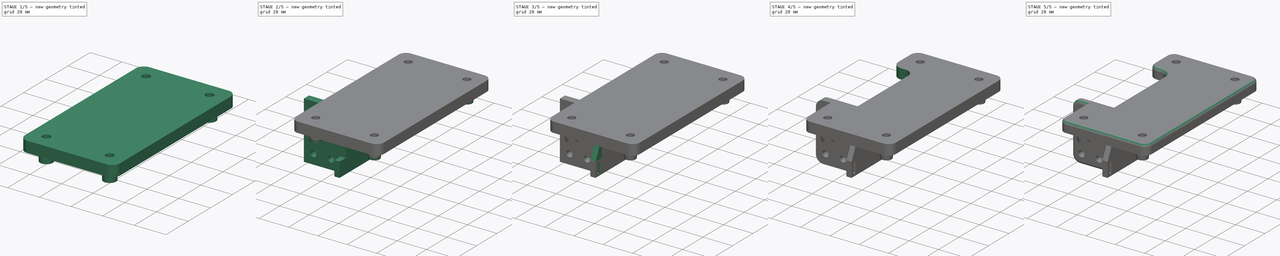
[diagram: build sequence overview — one tinted view per stage of 5, left to right]
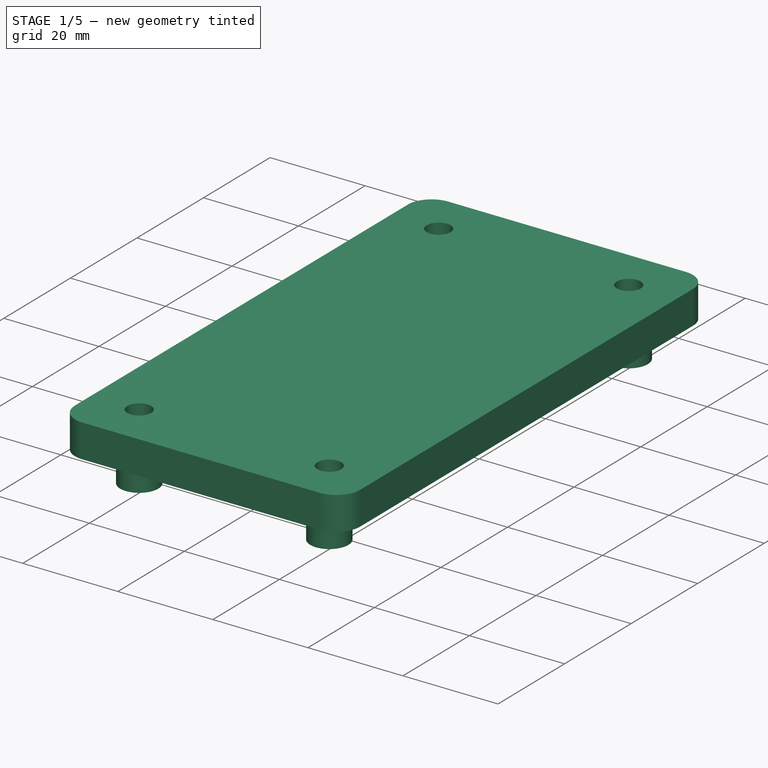
[diagram: stage 1 of 5 — iso view after this stage's code; geometry added in this stage tinted green]
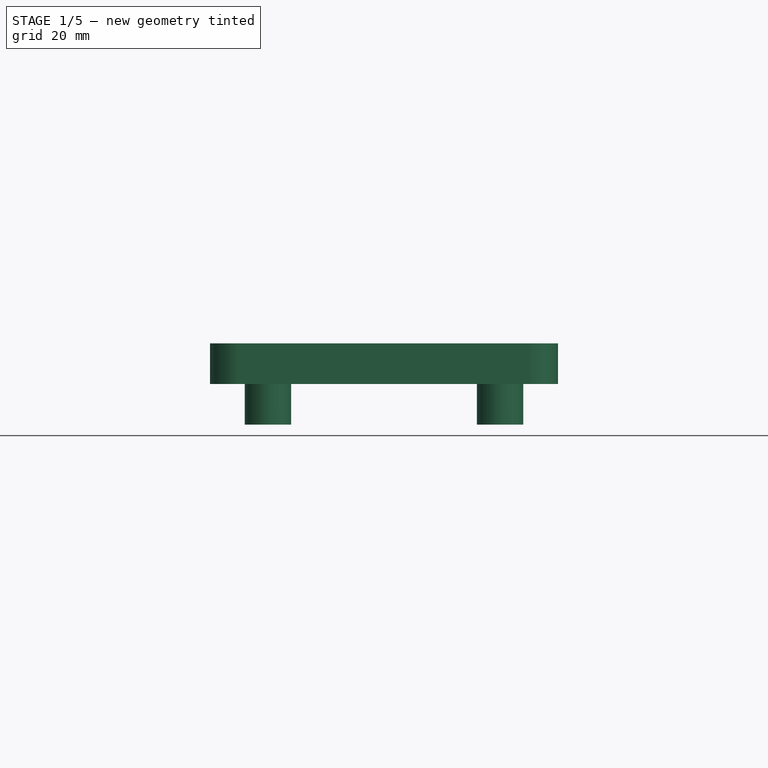
[diagram: stage 1 of 5 — front view after this stage's code; geometry added in this stage tinted green]
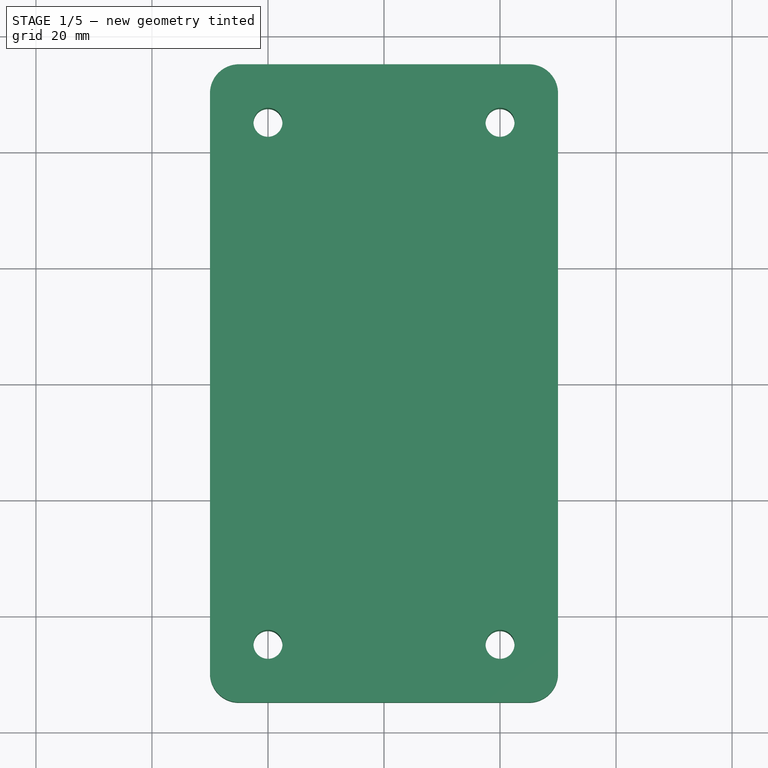
[diagram: stage 1 of 5 — top view after this stage's code; geometry added in this stage tinted green]
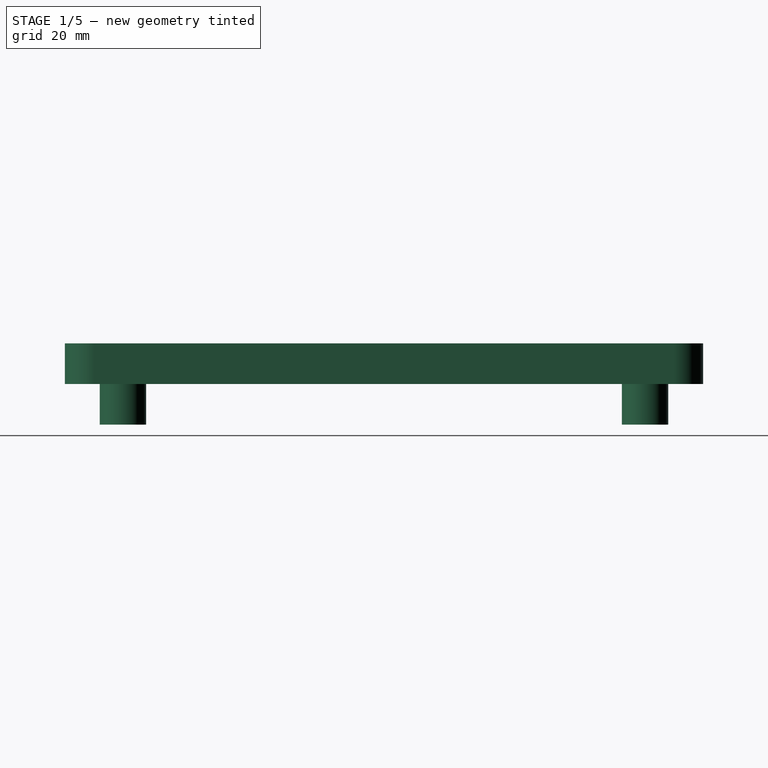
[diagram: stage 1 of 5 — right view after this stage's code; geometry added in this stage tinted green]
FCSTD DOCUMENT  (FreeCAD 0.20R29177 +426 (Git))
Label: x-carriage
License: All rights reserved
LicenseURL: http://en.wikipedia.org/wiki/All_rights_reserved
objects: Sketcher::SketchObject×8, PartDesign::Fillet×7, PartDesign::Pad×6, PartDesign::Chamfer×2, PartDesign::Pocket×2, PartDesign::Plane×1, PartDesign::Body×1
note: 44 computed .brp shape members not serialized (recipe doc carries the construction recipe); baked Part::Feature solids carry a one-line shape summary decoded from their .brp

FEATURE [Sketcher::SketchObject] Sketch
  FullyConstrained = true
  MapMode = 5
  Support = -> [XY_Plane]
  sketch-geometry (12):
    g0: LineSegment StartX=-30 StartY=55 StartZ=0 EndX=30 EndY=55 EndZ=0
    g1: LineSegment StartX=30 StartY=55 StartZ=0 EndX=30 EndY=-55 EndZ=0
    g2: LineSegment StartX=30 StartY=-55 StartZ=0 EndX=-30 EndY=-55 EndZ=0
    g3: LineSegment StartX=-30 StartY=-55 StartZ=0 EndX=-30 EndY=55 EndZ=0
    g4: LineSegment StartX=-20 StartY=45 StartZ=0 EndX=20 EndY=45 EndZ=0
    g5: LineSegment StartX=20 StartY=45 StartZ=0 EndX=20 EndY=-45 EndZ=0
    g6: LineSegment StartX=20 StartY=-45 StartZ=0 EndX=-20 EndY=-45 EndZ=0
    g7: LineSegment StartX=-20 StartY=-45 StartZ=0 EndX=-20 EndY=45 EndZ=0
    g8: Circle CenterX=-20 CenterY=45 CenterZ=0 NormalX=0 NormalY=0 NormalZ=1 AngleXU=0 Radius=2.5
    g9: Circle CenterX=20 CenterY=45 CenterZ=0 NormalX=0 NormalY=0 NormalZ=1 AngleXU=0 Radius=2.5
    g10: Circle CenterX=-20 CenterY=-45 CenterZ=0 NormalX=0 NormalY=0 NormalZ=1 AngleXU=0 Radius=2.5
    g11: Circle CenterX=20 CenterY=-45 CenterZ=0 NormalX=0 NormalY=0 NormalZ=1 AngleXU=0 Radius=2.5
  constraints (30):
    c: Coincident(g0,g1)
    c: Coincident(g1,g2)
    c: Coincident(g2,g3)
    c: Coincident(g3,g0)
    c: Horizontal(g0)
    c: Horizontal(g2)
    c: Vertical(g1)
    c: Vertical(g3)
    c: Symmetric(g0,g1,g-1)
    c: Distance(g0) = 60
    c: Distance(g1) = 110
    c: Coincident(g4,g5)
    c: Coincident(g5,g6)
    c: Coincident(g6,g7)
    c: Coincident(g7,g4)
    c: Horizontal(g4)
    c: Horizontal(g6)
    c: Vertical(g5)
    c: Vertical(g7)
    c: Symmetric(g4,g5,g-1)
    c: Distance(g4) = 40
    c: Distance(g7) = 90
    c: Coincident(g8,g4)
    c: Coincident(g9,g4)
    c: Coincident(g10,g6)
    c: Coincident(g11,g5)
    c: Equal(g10,g11)
    c: Equal(g11,g9)
    c: Equal(g9,g8)
    c: Diameter(g8) = 5
FEATURE [PartDesign::Pad] Pad
  Direction = (0,0,1)
  Length = 7
  Length2 = 10
  Profile = -> Sketch
  ReferenceAxis = -> Sketch [N_Axis]
  Type = 0
FEATURE [PartDesign::Fillet] Fillet
  Base = -> Pad [Edge5,Edge8,Edge2,Edge1]
  BaseFeature = -> Pad
  Radius = 5
  SupportTransform = false
  UseAllEdges = false
FEATURE [Sketcher::SketchObject] Sketch001
  FullyConstrained = true
  MapMode = 5
  Support = -> [XY_Plane]
  sketch-geometry (12):
    g0: LineSegment StartX=-20 StartY=45 StartZ=0 EndX=20 EndY=45 EndZ=0
    g1: LineSegment StartX=20 StartY=45 StartZ=0 EndX=20 EndY=-45 EndZ=0
    g2: LineSegment StartX=20 StartY=-45 StartZ=0 EndX=-20 EndY=-45 EndZ=0
    g3: LineSegment StartX=-20 StartY=-45 StartZ=0 EndX=-20 EndY=45 EndZ=0
    g4: Circle CenterX=20 CenterY=45 CenterZ=0 NormalX=0 NormalY=0 NormalZ=1 AngleXU=0 Radius=2.5
    g5: Circle CenterX=20 CenterY=45 CenterZ=0 NormalX=0 NormalY=0 NormalZ=1 AngleXU=0 Radius=4
    g6: Circle CenterX=-20 CenterY=45 CenterZ=0 NormalX=0 NormalY=0 NormalZ=1 AngleXU=0 Radius=4
    g7: Circle CenterX=-20 CenterY=45 CenterZ=0 NormalX=0 NormalY=0 NormalZ=1 AngleXU=0 Radius=2.5
    g8: Circle CenterX=20 CenterY=-45 CenterZ=0 NormalX=0 NormalY=0 NormalZ=1 AngleXU=0 Radius=4
    g9: Circle CenterX=20 CenterY=-45 CenterZ=0 NormalX=0 NormalY=0 NormalZ=1 AngleXU=0 Radius=2.5
    g10: Circle CenterX=-20 CenterY=-45 CenterZ=0 NormalX=0 NormalY=0 NormalZ=1 AngleXU=0 Radius=4
    g11: Circle CenterX=-20 CenterY=-45 CenterZ=0 NormalX=0 NormalY=0 NormalZ=1 AngleXU=0 Radius=2.5
  constraints (27):
    c: Coincident(g0,g1)
    c: Coincident(g1,g2)
    c: Coincident(g2,g3)
    c: Coincident(g3,g0)
    c: Horizontal(g0)
    c: Horizontal(g2)
    c: Vertical(g1)
    c: Vertical(g3)
    c: Symmetric(g0,g2,g-1)
    c: Distance(g2) = 40
    c: Distance(g3) = 90
    c: Coincident(g4,g0)
    c: Coincident(g5,g4)
    c: Coincident(g6,g0)
    c: Coincident(g7,g6)
    c: Coincident(g8,g1)
    c: Coincident(g9,g8)
    c: Coincident(g10,g2)
    c: Coincident(g11,g10)
    c: Equal(g4,g7)
    c: Equal(g7,g9)
    c: Equal(g9,g11)
    c: Equal(g8,g10)
    c: Equal(g10,g5)
    c: Equal(g5,g6)
    c: Diameter(g9) = 5
    c: Diameter(g8) = 8
FEATURE [PartDesign::Pad] Pad001
  BaseFeature = -> Fillet
  Direction = (0,0,1)
  Length = 7
  Length2 = 10
  Profile = -> Sketch001
  ReferenceAxis = -> Sketch001 [N_Axis]
  Reversed = true
  Type = 0
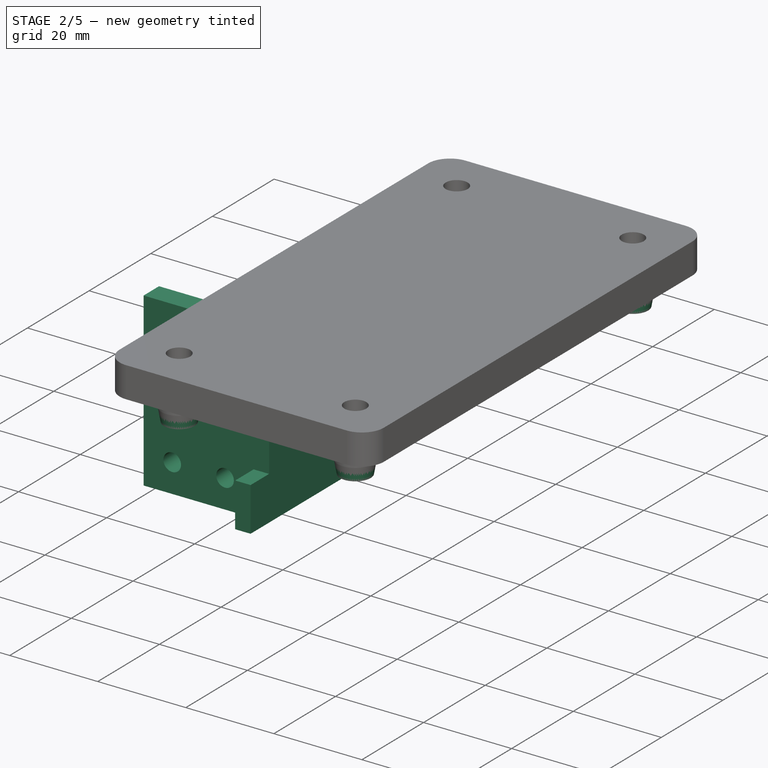
[diagram: stage 2 of 5 — iso view after this stage's code; geometry added in this stage tinted green]
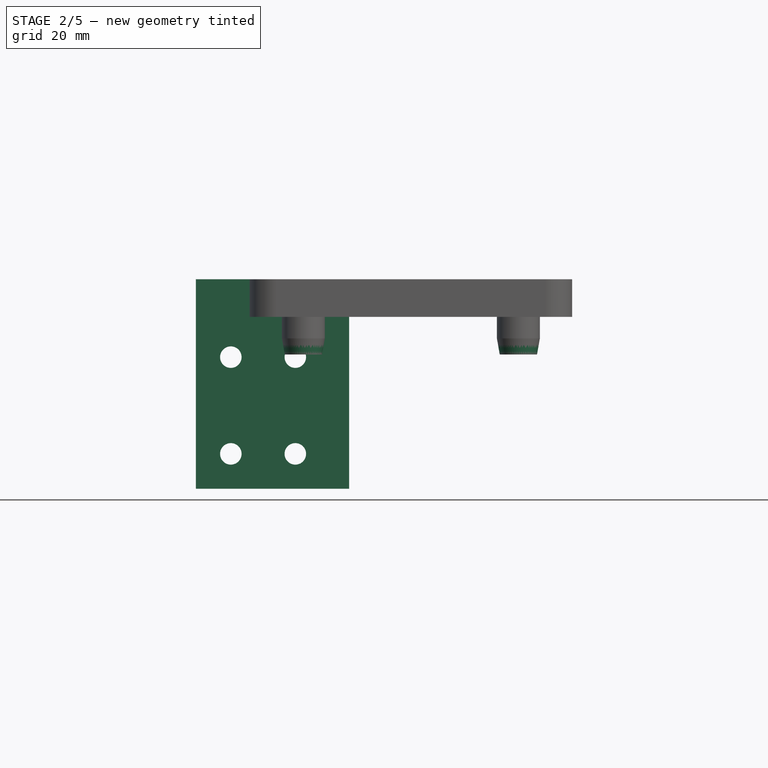
[diagram: stage 2 of 5 — front view after this stage's code; geometry added in this stage tinted green]
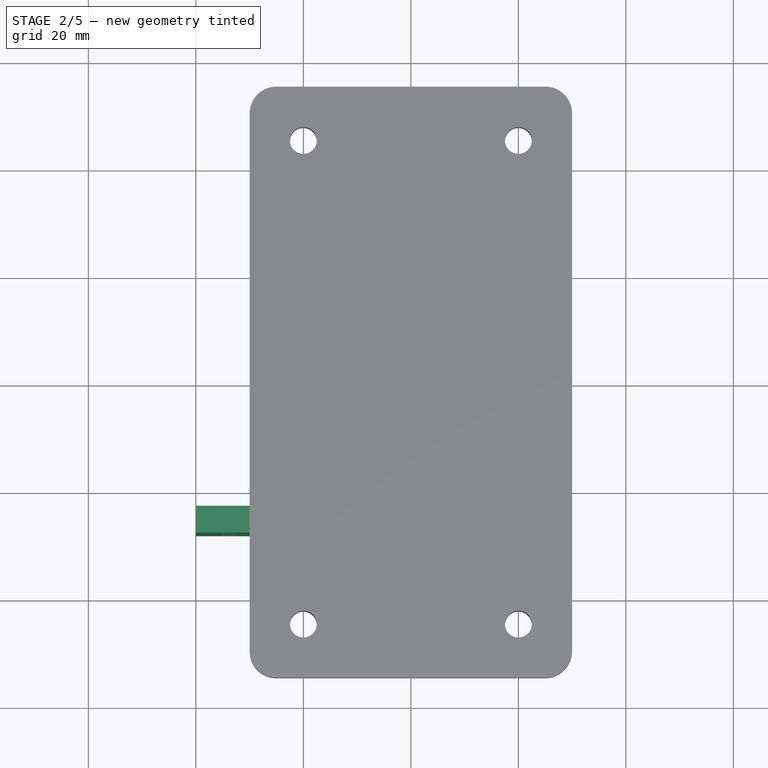
[diagram: stage 2 of 5 — top view after this stage's code; geometry added in this stage tinted green]
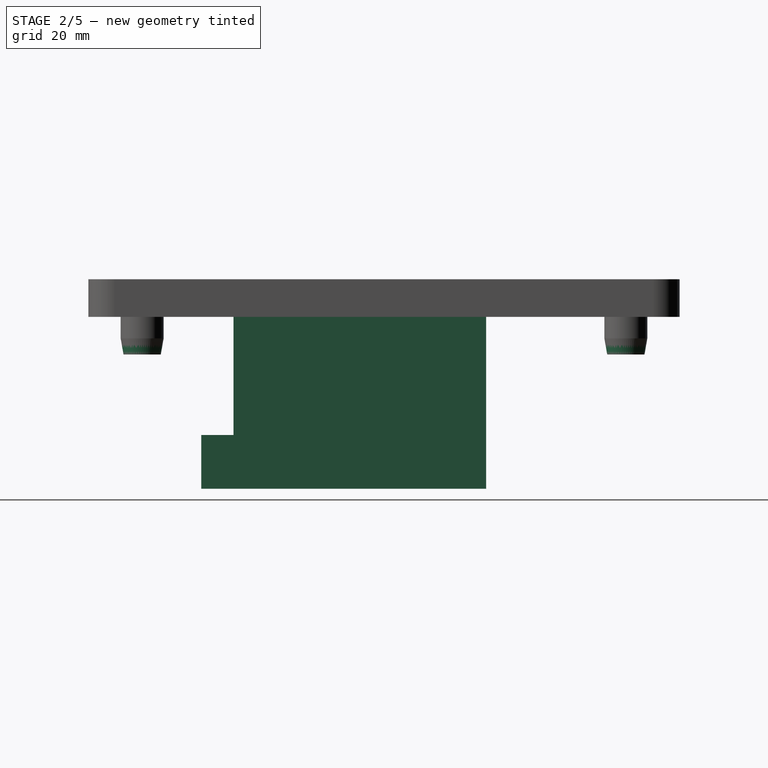
[diagram: stage 2 of 5 — right view after this stage's code; geometry added in this stage tinted green]
FEATURE [PartDesign::Chamfer] Chamfer
  Angle = 10
  Base = -> Pad001 [Edge38,Edge40,Edge34,Edge36]
  BaseFeature = -> Pad001
  ChamferType = 2
  FlipDirection = false
  Size = 3
  Size2 = 1
  SupportTransform = false
  UseAllEdges = false
FEATURE [PartDesign::Plane] DatumPlane
  AttachmentOffset = pos=(0,0,23) rot=(0,0,1;0rad)
  Length = 82.6333
  MapMode = 5
  Placement = pos=(0,-23,-5.1e-15) rot=(1,0,0;1.5708rad)
  ResizeMode = 0
  Support = -> [XZ_Plane]
  Width = 69.6333
FEATURE [Sketcher::SketchObject] Sketch002
  FullyConstrained = true
  MapMode = 5
  Placement = pos=(0,-23,-5.1e-15) rot=(1,0,0;1.5708rad)
  Support = -> [DatumPlane]
  sketch-geometry (15):
    g0: LineSegment StartX=-15 StartY=0 StartZ=0 EndX=-30 EndY=0 EndZ=0
    g1: LineSegment StartX=-40 StartY=0 StartZ=0 EndX=-40 EndY=-32 EndZ=0
    g2: LineSegment StartX=-40 StartY=-32 StartZ=0 EndX=-15 EndY=-32 EndZ=0
    g3: LineSegment StartX=-15 StartY=-32 StartZ=0 EndX=-15 EndY=0 EndZ=0
    g4: LineSegment StartX=-33.5 StartY=-7.5 StartZ=0 EndX=-21.5 EndY=-7.5 EndZ=0
    g5: LineSegment StartX=-21.5 StartY=-7.5 StartZ=0 EndX=-21.5 EndY=-25.5 EndZ=0
    g6: LineSegment StartX=-21.5 StartY=-25.5 StartZ=0 EndX=-33.5 EndY=-25.5 EndZ=0
    g7: LineSegment StartX=-33.5 StartY=-25.5 StartZ=0 EndX=-33.5 EndY=-7.5 EndZ=0
    g8: Circle CenterX=-33.5 CenterY=-7.5 CenterZ=0 NormalX=0 NormalY=0 NormalZ=1 AngleXU=0 Radius=2
    g9: Circle CenterX=-21.5 CenterY=-7.5 CenterZ=0 NormalX=0 NormalY=0 NormalZ=1 AngleXU=0 Radius=2
    g10: Circle CenterX=-33.5 CenterY=-25.5 CenterZ=0 NormalX=0 NormalY=0 NormalZ=1 AngleXU=0 Radius=2
    g11: Circle CenterX=-21.5 CenterY=-25.5 CenterZ=0 NormalX=0 NormalY=0 NormalZ=1 AngleXU=0 Radius=2
    g12: LineSegment StartX=-40 StartY=0 StartZ=0 EndX=-40 EndY=7 EndZ=0
    g13: LineSegment StartX=-40 StartY=7 StartZ=0 EndX=-30 EndY=7 EndZ=0
    g14: LineSegment StartX=-30 StartY=7 StartZ=0 EndX=-30 EndY=0 EndZ=0
  constraints (41):
    c: Coincident(g1,g2)
    c: Coincident(g2,g3)
    c: Coincident(g3,g0)
    c: Horizontal(g0)
    c: Horizontal(g2)
    c: Vertical(g1)
    c: Vertical(g3)
    c: PointOnObject(g0,g-1)
    c: Distance(g0,g-1) = 15
    c: Coincident(g4,g5)
    c: Coincident(g5,g6)
    c: Coincident(g6,g7)
    c: Coincident(g7,g4)
    c: Horizontal(g4)
    c: Horizontal(g6)
    c: Vertical(g5)
    c: Vertical(g7)
    c: Distance(g4,g3) = 6.5
    c: Distance(g4) = 12
    c: Distance(g4,g1) = 6.5
    c: Distance(g5) = 18
    c: Distance(g6,g2) = 6.5
    c: Coincident(g8,g4)
    c: Coincident(g9,g4)
    c: Coincident(g10,g6)
    c: Coincident(g11,g5)
    c: Equal(g9,g8)
    c: Equal(g8,g10)
    c: Equal(g10,g11)
    c: Diameter(g9) = 4
    c: Coincident(g12,g1)
    c: Vertical(g12)
    c: Coincident(g13,g12)
    c: Horizontal(g13)
    c: Distance(g12) = 7
    c: Coincident(g14,g13)
    c: Vertical(g14)
    c: Distance(g9,g0) = 7.5
    c: Coincident(g0,g14)
    c: Distance(g0) = 15
    c: PointOnObject(g1,g-1)
FEATURE [PartDesign::Pad] Pad002
  BaseFeature = -> Chamfer
  Direction = (0,-1,2e-16)
  Length = 5
  Length2 = 10
  Profile = -> Sketch002
  ReferenceAxis = -> Sketch002 [N_Axis]
  Type = 0
FEATURE [Sketcher::SketchObject] Sketch003
  FullyConstrained = true
  MapMode = 5
  Placement = pos=(-15,0,0) rot=(0.57735,0.57735,0.57735;2.0944rad)
  sketch-geometry (4):
    g0: LineSegment StartX=-28 StartY=0 StartZ=0 EndX=19 EndY=0 EndZ=0
    g1: LineSegment StartX=19 StartY=0 StartZ=0 EndX=19 EndY=-32 EndZ=0
    g2: LineSegment StartX=19 StartY=-32 StartZ=0 EndX=-28 EndY=-32 EndZ=0
    g3: LineSegment StartX=-28 StartY=-32 StartZ=0 EndX=-28 EndY=0 EndZ=0
  constraints (12):
    c: Coincident(g0,g1)
    c: Coincident(g1,g2)
    c: Coincident(g2,g3)
    c: Coincident(g3,g0)
    c: Horizontal(g0)
    c: Horizontal(g2)
    c: Vertical(g1)
    c: Vertical(g3)
    c: Distance(g2) = 47
    c: Distance(g1) = 32
    c: PointOnObject(g-1,g0)
    c: Distance(g2,g-2) = 28
FEATURE [PartDesign::Pad] Pad003
  BaseFeature = -> Pad002
  Direction = (1,0,0)
  Length = 3.5
  Length2 = 10
  Profile = -> Sketch003
  ReferenceAxis = -> Sketch003 [N_Axis]
  Type = 0
FEATURE [Sketcher::SketchObject] Sketch004
  ExternalGeometry = -> [Pad003]
  FullyConstrained = true
  MapMode = 5
  Placement = pos=(0,-28,0) rot=(1,0,0;1.5708rad)
  sketch-geometry (4):
    g0: LineSegment StartX=-15 StartY=-22 StartZ=0 EndX=-11.5 EndY=-22 EndZ=0
    g1: LineSegment StartX=-11.5 StartY=-22 StartZ=0 EndX=-11.5 EndY=-32 EndZ=0
    g2: LineSegment StartX=-11.5 StartY=-32 StartZ=0 EndX=-15 EndY=-32 EndZ=0
    g3: LineSegment StartX=-15 StartY=-32 StartZ=0 EndX=-15 EndY=-22 EndZ=0
  constraints (10):
    c: Coincident(g0,g1)
    c: Coincident(g1,g2)
    c: Coincident(g2,g3)
    c: Coincident(g3,g0)
    c: Horizontal(g0)
    c: Vertical(g1)
    c: Vertical(g3)
    c: Distance(g1) = 10
    c: Coincident(g2,g-3)
    c: Coincident(g1,g-3)
FEATURE [PartDesign::Pad] Pad004
  BaseFeature = -> Pad003
  Direction = (0,-1,2e-16)
  Length = 6
  Length2 = 10
  Profile = -> Sketch004
  ReferenceAxis = -> Sketch004 [N_Axis]
  Type = 0
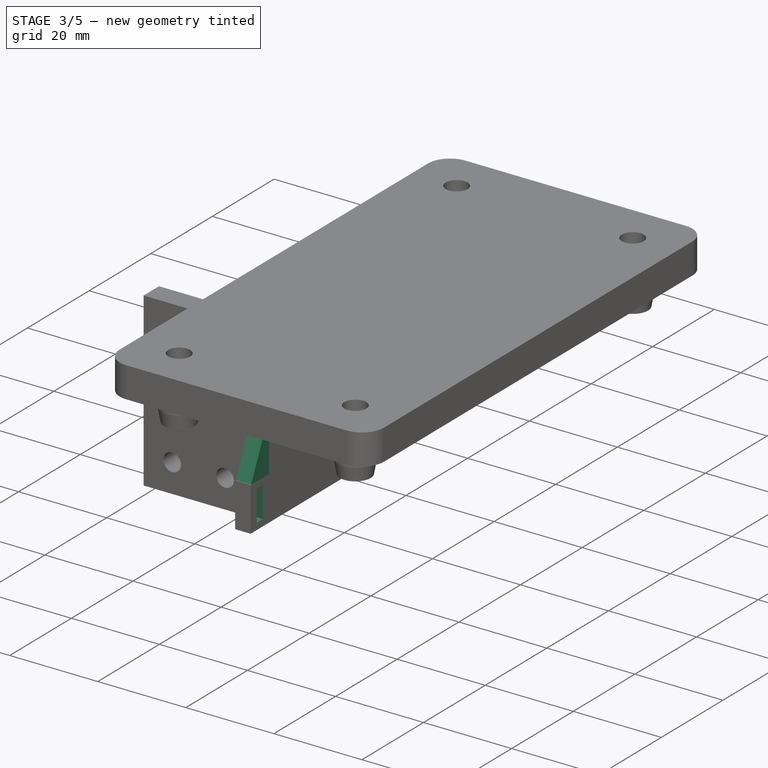
[diagram: stage 3 of 5 — iso view after this stage's code; geometry added in this stage tinted green]
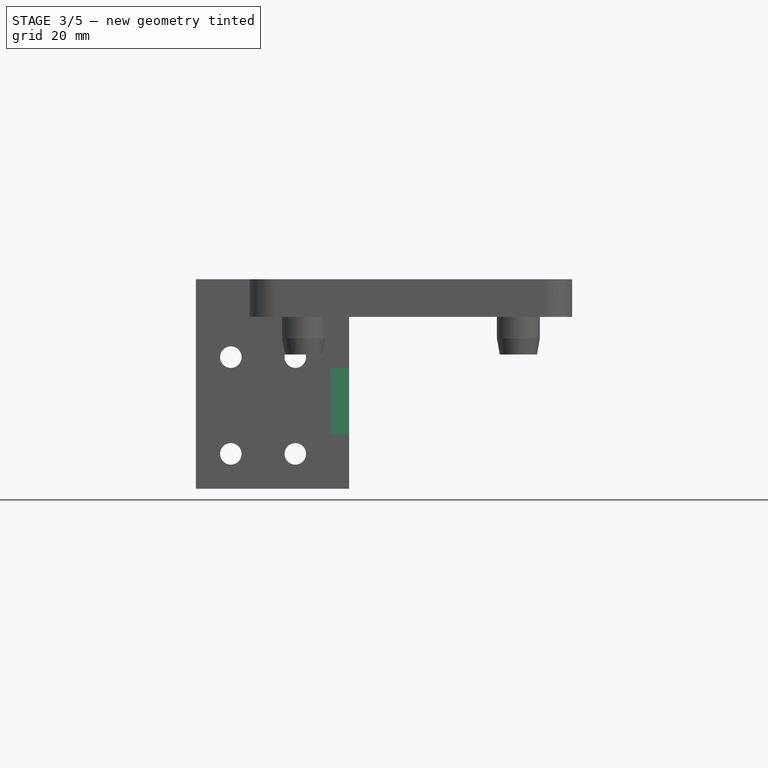
[diagram: stage 3 of 5 — front view after this stage's code; geometry added in this stage tinted green]
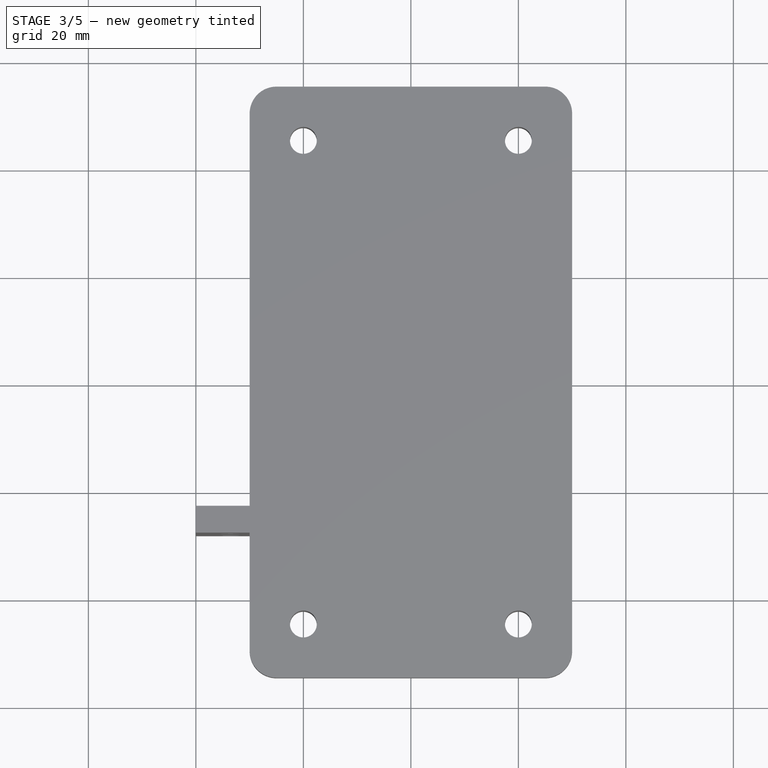
[diagram: stage 3 of 5 — top view after this stage's code; geometry added in this stage tinted green]
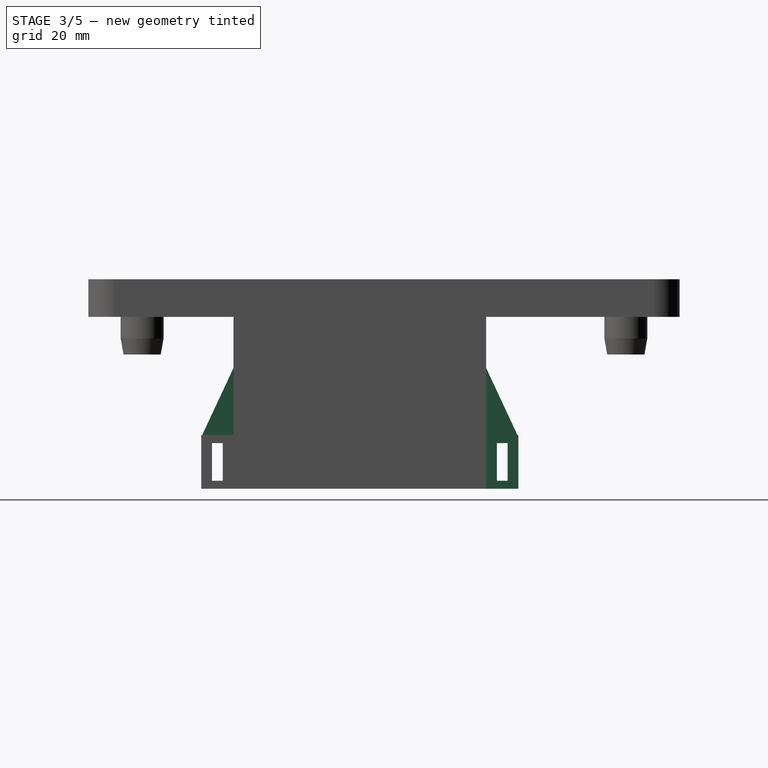
[diagram: stage 3 of 5 — right view after this stage's code; geometry added in this stage tinted green]
FEATURE [Sketcher::SketchObject] Sketch005
  ExternalGeometry = -> [Pad004]
  FullyConstrained = true
  MapMode = 5
  Placement = pos=(0,19,0) rot=(0,0.707107,0.707107;3.14159rad)
  Support = -> [Pad004]
  sketch-geometry (4):
    g0: LineSegment StartX=15 StartY=-32 StartZ=0 EndX=11.5 EndY=-32 EndZ=0
    g1: LineSegment StartX=11.5 StartY=-32 StartZ=0 EndX=11.5 EndY=-22 EndZ=0
    g2: LineSegment StartX=11.5 StartY=-22 StartZ=0 EndX=15 EndY=-22 EndZ=0
    g3: LineSegment StartX=15 StartY=-22 StartZ=0 EndX=15 EndY=-32 EndZ=0
  constraints (10):
    c: Coincident(g0,g1)
    c: Coincident(g1,g2)
    c: Coincident(g2,g3)
    c: Coincident(g3,g0)
    c: Horizontal(g2)
    c: Vertical(g1)
    c: Vertical(g3)
    c: Coincident(g0,g-3)
    c: Coincident(g0,g-3)
    c: Distance(g1) = 10
FEATURE [PartDesign::Pad] Pad005
  BaseFeature = -> Pad004
  Direction = (0,1,-2e-16)
  Length = 6
  Length2 = 10
  Profile = -> Sketch005
  ReferenceAxis = -> Sketch005 [N_Axis]
  Type = 0
FEATURE [Sketcher::SketchObject] Sketch006
  ExternalGeometry = -> [Pad005]
  FullyConstrained = true
  MapMode = 5
  Placement = pos=(-11.5,0,0) rot=(0.57735,0.57735,0.57735;2.0944rad)
  Support = -> [Pad005]
  sketch-geometry (8):
    g0: LineSegment StartX=-32 StartY=-23.5 StartZ=0 EndX=-30 EndY=-23.5 EndZ=0
    g1: LineSegment StartX=-30 StartY=-23.5 StartZ=0 EndX=-30 EndY=-30.5 EndZ=0
    g2: LineSegment StartX=-30 StartY=-30.5 StartZ=0 EndX=-32 EndY=-30.5 EndZ=0
    g3: LineSegment StartX=-32 StartY=-30.5 StartZ=0 EndX=-32 EndY=-23.5 EndZ=0
    g4: LineSegment StartX=21 StartY=-23.5 StartZ=0 EndX=23 EndY=-23.5 EndZ=0
    g5: LineSegment StartX=23 StartY=-23.5 StartZ=0 EndX=23 EndY=-30.5 EndZ=0
    g6: LineSegment StartX=23 StartY=-30.5 StartZ=0 EndX=21 EndY=-30.5 EndZ=0
    g7: LineSegment StartX=21 StartY=-30.5 StartZ=0 EndX=21 EndY=-23.5 EndZ=0
  constraints (24):
    c: Coincident(g0,g1)
    c: Coincident(g1,g2)
    c: Coincident(g2,g3)
    c: Coincident(g3,g0)
    c: Horizontal(g0)
    c: Horizontal(g2)
    c: Vertical(g1)
    c: Vertical(g3)
    c: Coincident(g4,g5)
    c: Coincident(g5,g6)
    c: Coincident(g6,g7)
    c: Coincident(g7,g4)
    c: Horizontal(g4)
    c: Horizontal(g6)
    c: Vertical(g5)
    c: Vertical(g7)
    c: Equal(g7,g1)
    c: Equal(g0,g4)
    c: Distance(g3) = 7
    c: Distance(g0) = 2
    c: Distance(g0,g-6) = 1.5
    c: Distance(g0,g-5) = 2
    c: Horizontal(g4,g0)
    c: Distance(g4,g-4) = 2
FEATURE [PartDesign::Pocket] Pocket
  BaseFeature = -> Pad005
  Direction = (-1,0,0)
  Length = 5
  Length2 = 5
  Profile = -> Sketch006
  ReferenceAxis = -> Sketch006 [N_Axis]
  Type = 1
FEATURE [PartDesign::Chamfer] Chamfer001
  Angle = 25
  Base = -> Pocket [Edge51,Edge57]
  BaseFeature = -> Pocket
  ChamferType = 2
  FlipDirection = false
  Size = 12.5
  Size2 = 1
  SupportTransform = false
  UseAllEdges = false
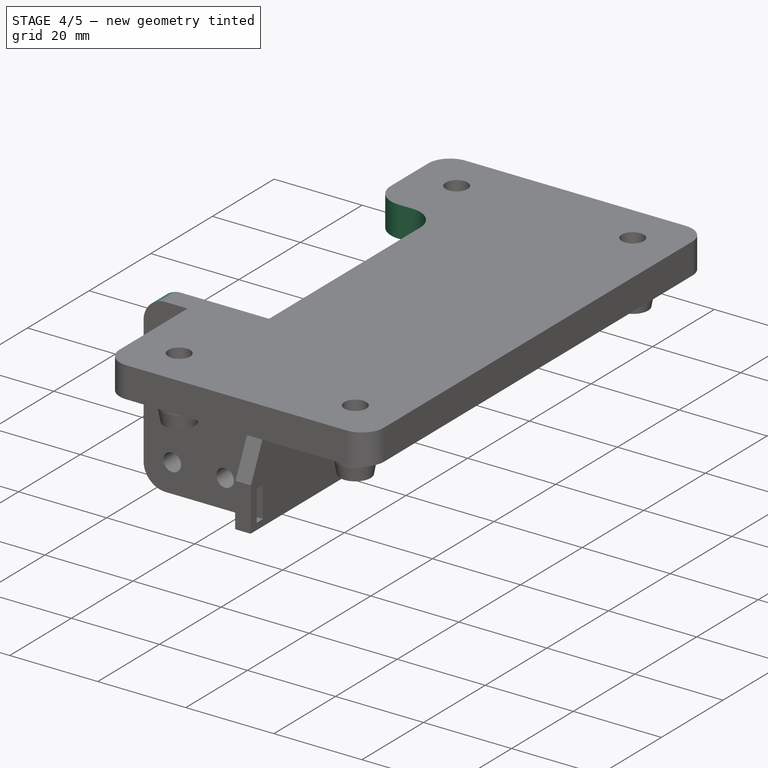
[diagram: stage 4 of 5 — iso view after this stage's code; geometry added in this stage tinted green]
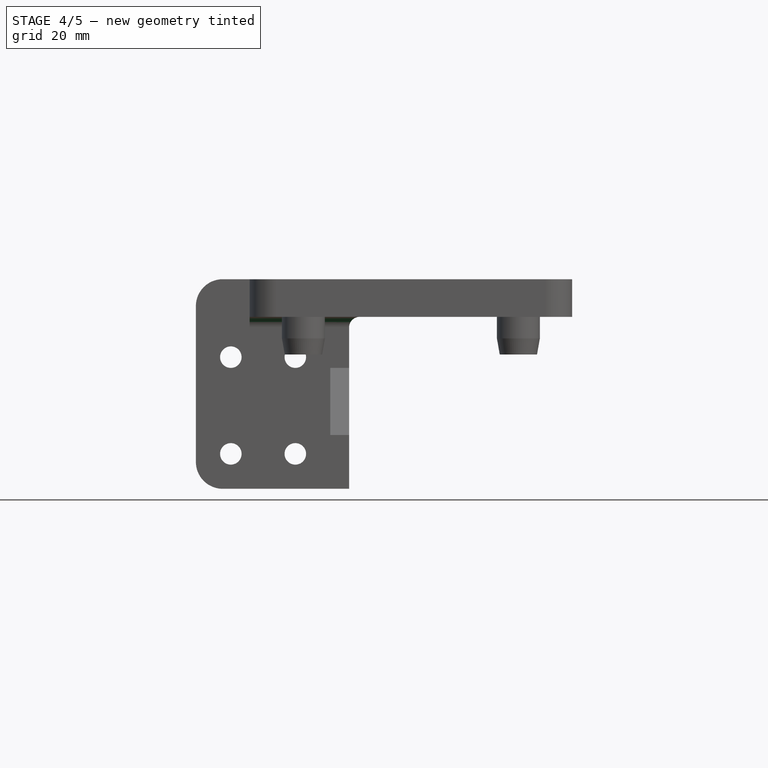
[diagram: stage 4 of 5 — front view after this stage's code; geometry added in this stage tinted green]
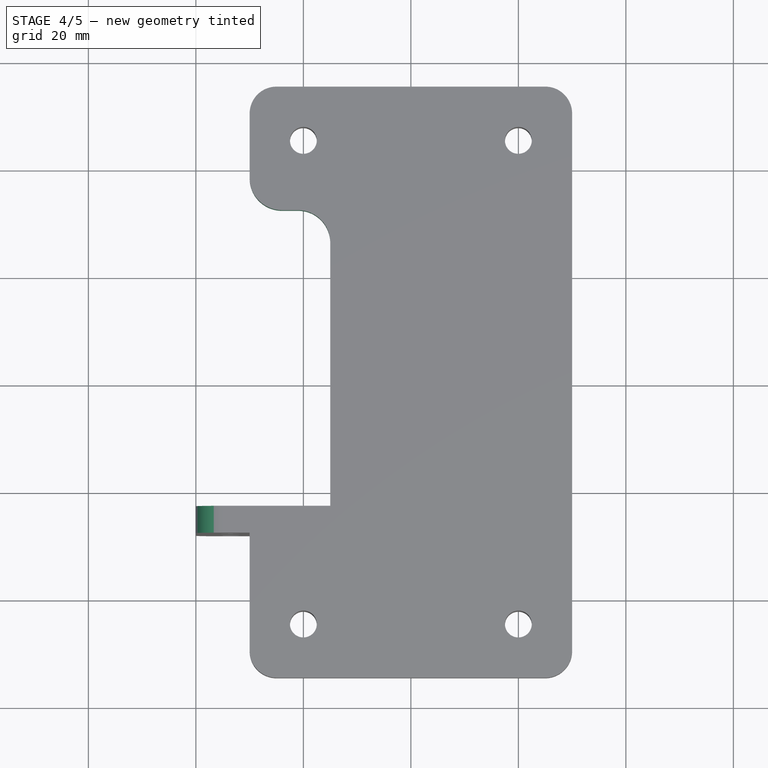
[diagram: stage 4 of 5 — top view after this stage's code; geometry added in this stage tinted green]
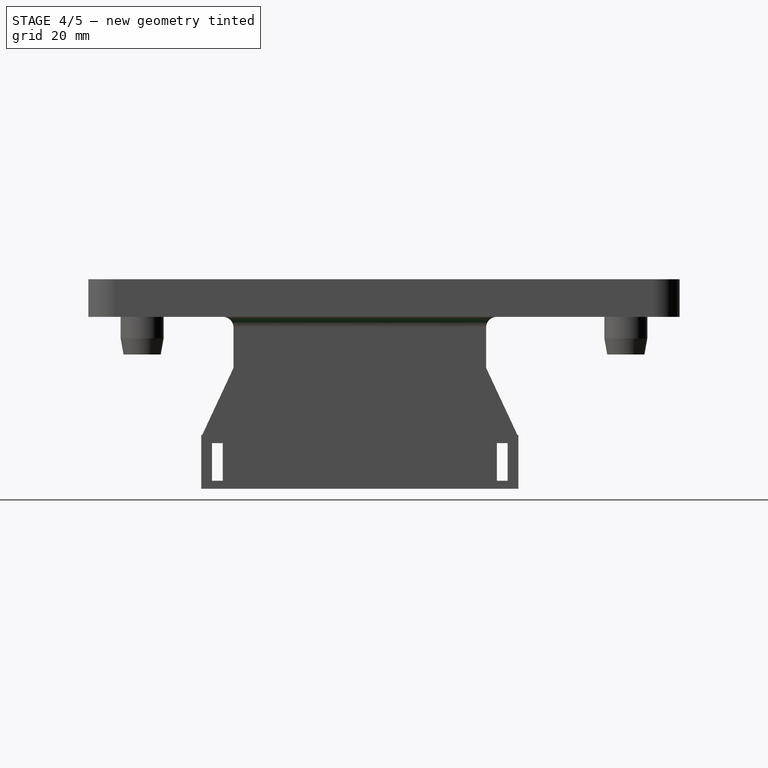
[diagram: stage 4 of 5 — right view after this stage's code; geometry added in this stage tinted green]
FEATURE [Sketcher::SketchObject] Sketch007
  ExternalGeometry = -> [Chamfer001]
  FullyConstrained = true
  MapMode = 5
  Placement = pos=(0,0,0) rot=(1,0,0;3.14159rad)
  Support = -> [Chamfer001]
  sketch-geometry (4):
    g0: LineSegment StartX=-30 StartY=23 StartZ=0 EndX=-15 EndY=23 EndZ=0
    g1: LineSegment StartX=-15 StartY=23 StartZ=0 EndX=-15 EndY=-32 EndZ=0
    g2: LineSegment StartX=-15 StartY=-32 StartZ=0 EndX=-30 EndY=-32 EndZ=0
    g3: LineSegment StartX=-30 StartY=-32 StartZ=0 EndX=-30 EndY=23 EndZ=0
  constraints (11):
    c: Coincident(g0,g1)
    c: Coincident(g1,g2)
    c: Coincident(g2,g3)
    c: Coincident(g3,g0)
    c: Horizontal(g0)
    c: Horizontal(g2)
    c: Vertical(g1)
    c: Vertical(g3)
    c: Coincident(g0,g-3)
    c: Distance(g1) = 55
    c: PointOnObject(g-4,g1)
FEATURE [PartDesign::Pocket] Pocket001
  BaseFeature = -> Chamfer001
  Direction = (0,0,1)
  Length = 5
  Length2 = 5
  Profile = -> Sketch007
  ReferenceAxis = -> Sketch007 [N_Axis]
  Type = 1
FEATURE [PartDesign::Fillet] Fillet001
  Base = -> Pocket001 [Edge82,Edge79]
  BaseFeature = -> Pocket001
  Radius = 6
  SupportTransform = false
  UseAllEdges = false
FEATURE [PartDesign::Fillet] Fillet002
  Base = -> Fillet001 [Edge125,Edge115]
  BaseFeature = -> Fillet001
  Radius = 5
  SupportTransform = false
  UseAllEdges = false
FEATURE [PartDesign::Fillet] Fillet003
  Base = -> Fillet002 [Edge8,Edge36,Edge34]
  BaseFeature = -> Fillet002
  Radius = 2
  SupportTransform = false
  UseAllEdges = false
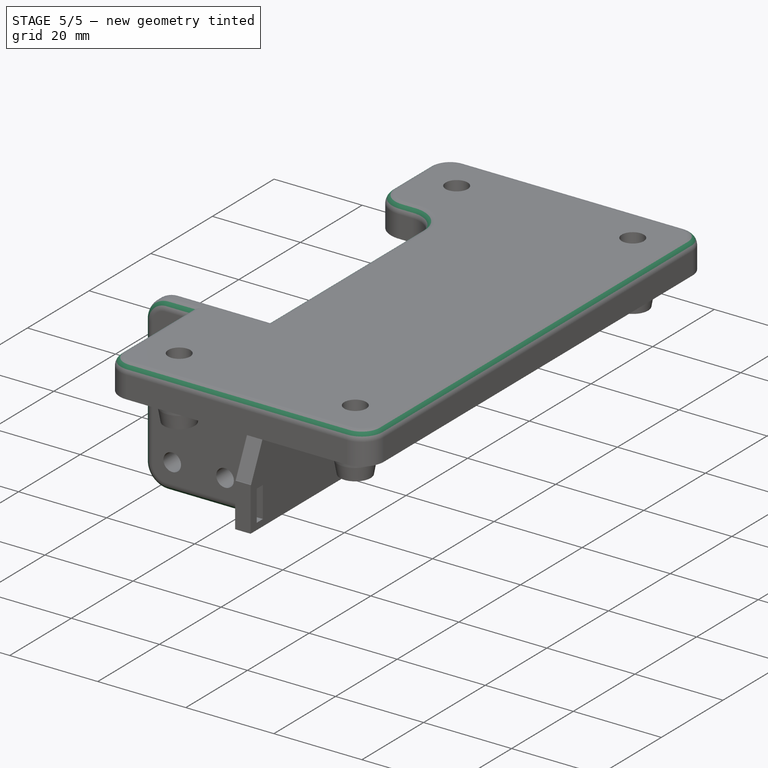
[diagram: stage 5 of 5 — iso view after this stage's code; geometry added in this stage tinted green]
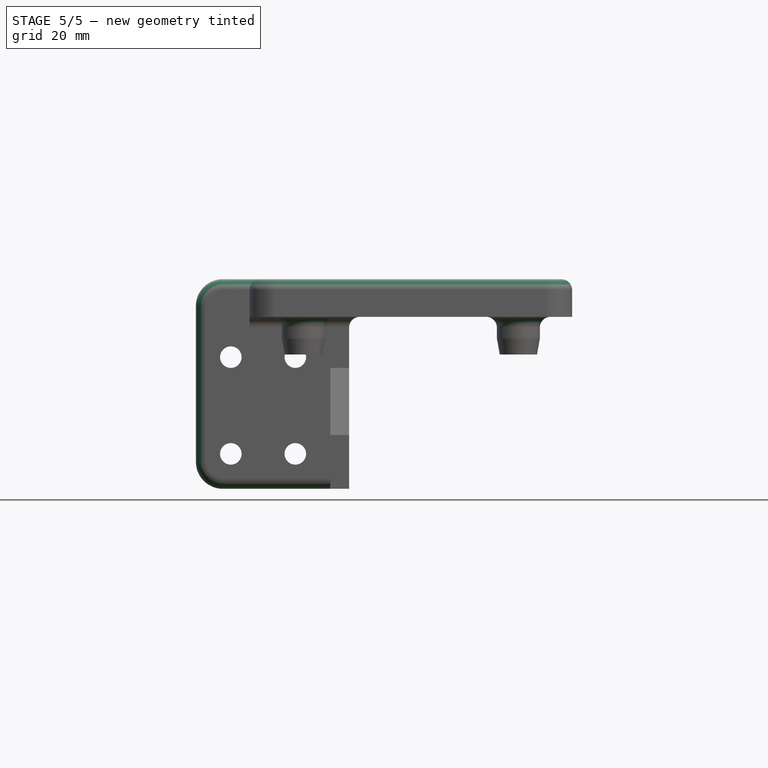
[diagram: stage 5 of 5 — front view after this stage's code; geometry added in this stage tinted green]
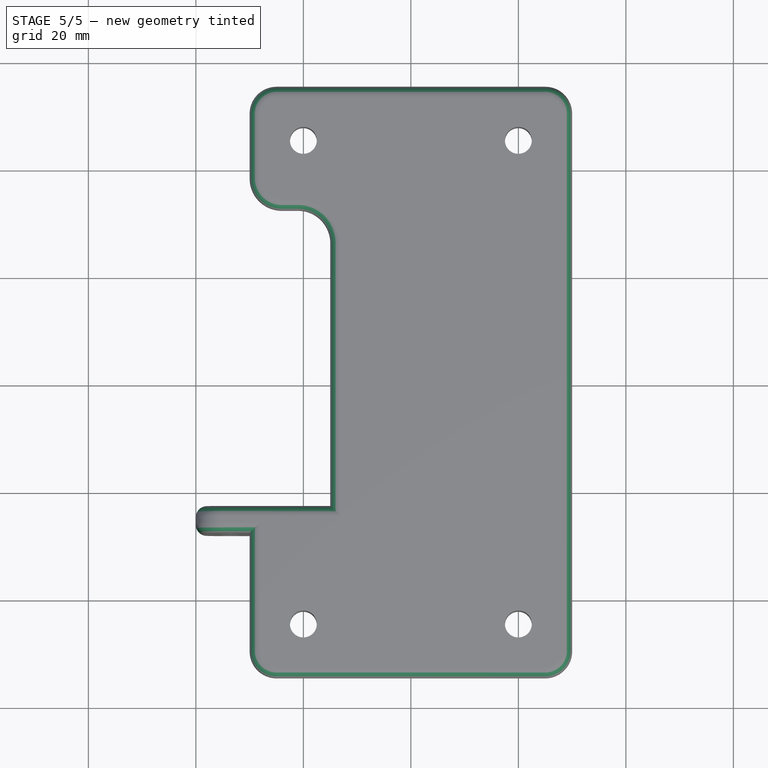
[diagram: stage 5 of 5 — top view after this stage's code; geometry added in this stage tinted green]
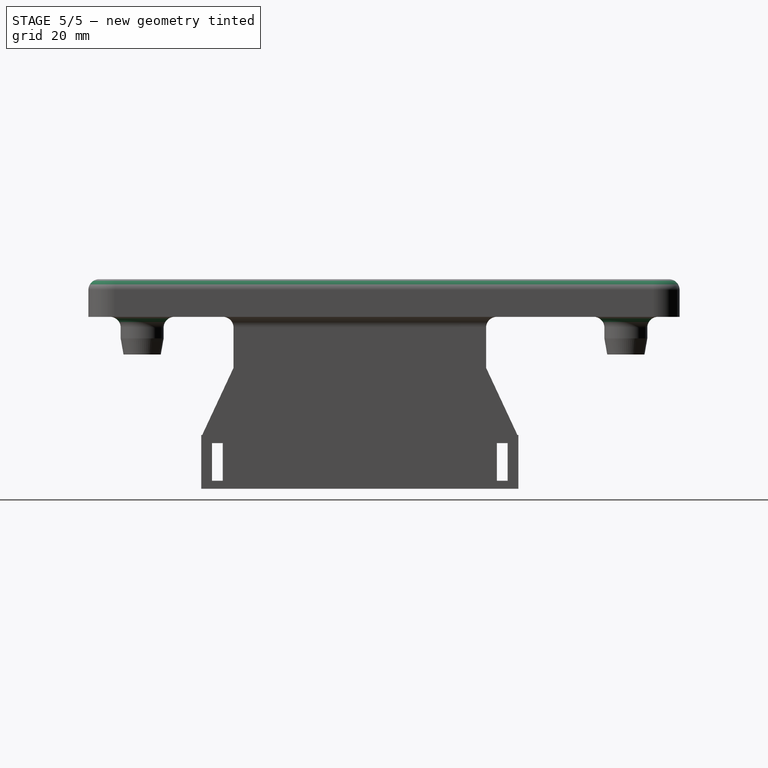
[diagram: stage 5 of 5 — right view after this stage's code; geometry added in this stage tinted green]
FEATURE [PartDesign::Fillet] Fillet004
  Base = -> Fillet003 [Face10]
  BaseFeature = -> Fillet003
  Radius = 2
  SupportTransform = false
  UseAllEdges = false
FEATURE [PartDesign::Fillet] Fillet005
  Base = -> Fillet004 [Edge43,Edge113,Edge115,Edge117,Edge119]
  BaseFeature = -> Fillet004
  Radius = 2
  SupportTransform = false
  UseAllEdges = false
FEATURE [PartDesign::Fillet] Fillet006
  Base = -> Fillet005 [Edge29,Edge28,Edge31,Edge30]
  BaseFeature = -> Fillet005
  Radius = 2
  SupportTransform = false
  UseAllEdges = false
FEATURE [PartDesign::Body] Body
  Group = -> [Sketch,Pad,Fillet,Sketch001,Pad001,Chamfer,DatumPlane,Sketch002,Pad002,Sketch003,Pad003,Sketch004,Pad004,Sketch005,Pad005,Sketch006,Pocket,Chamfer001,Sketch007,Pocket001,Fillet001,Fillet002,Fillet003,Fillet004,Fillet005,Fillet006]
  Origin = -> Origin
  Tip = -> Fillet006
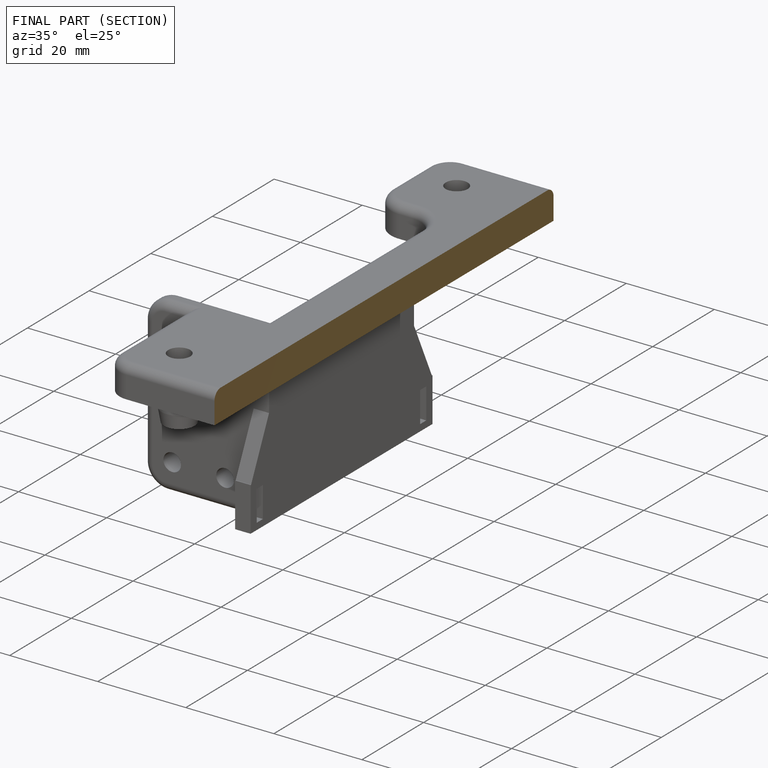
[diagram: finished part — half-section view (interior)]
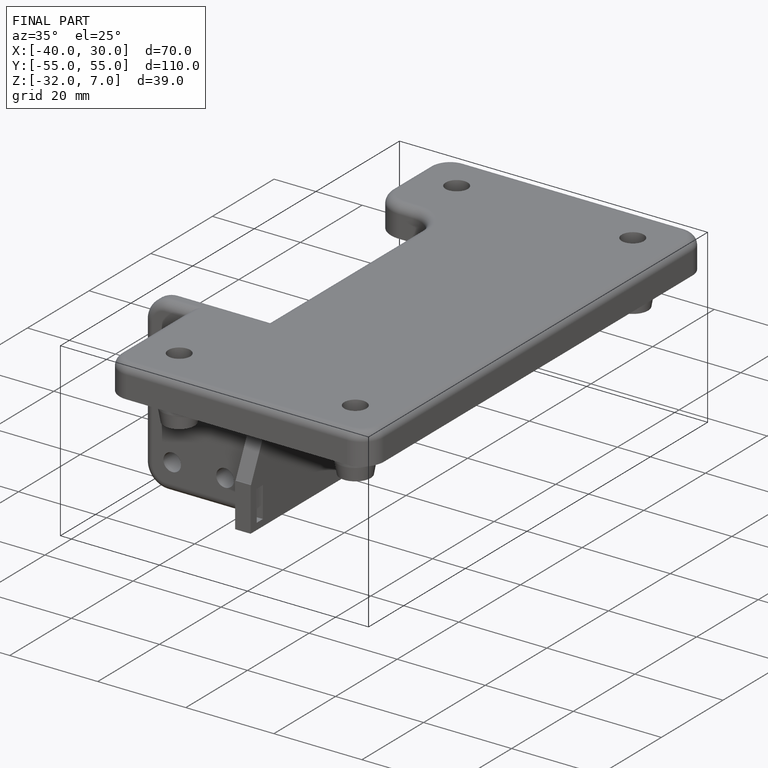
[diagram: finished part — iso view with bounding-box wireframe]
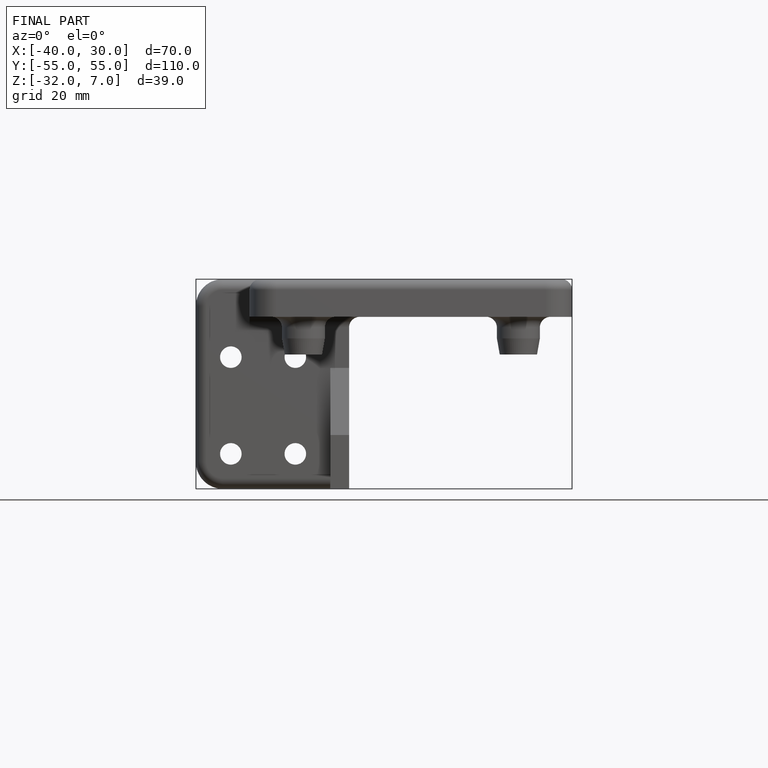
[diagram: finished part — front view with bounding-box wireframe]
